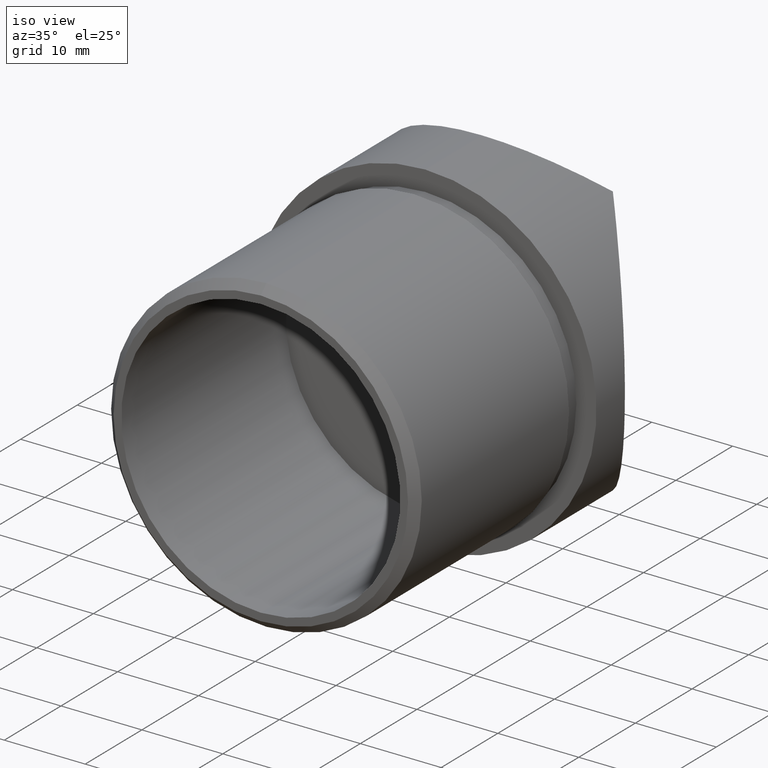
[diagram: clean part render]
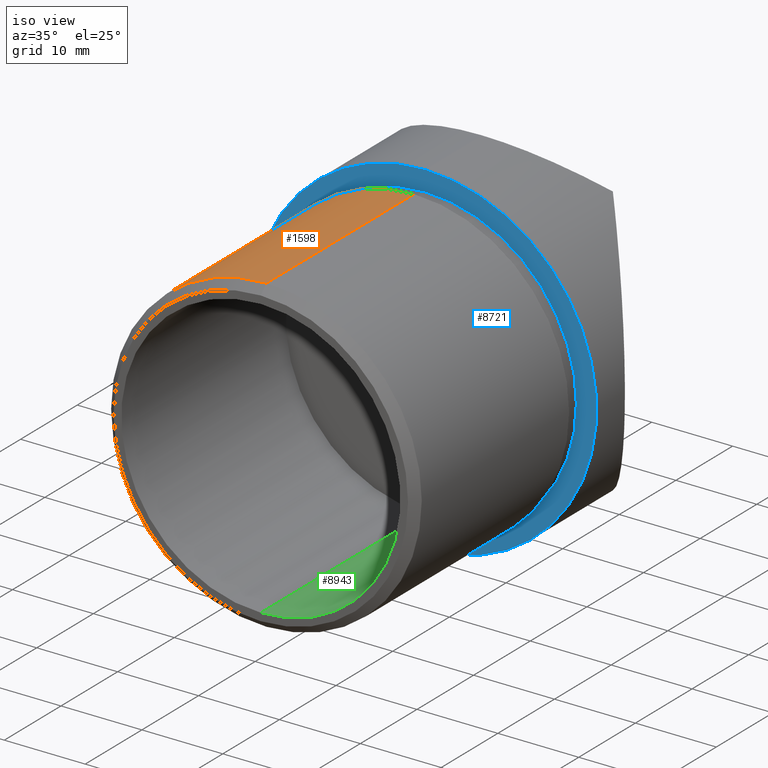
[diagram: same view with three faces highlighted in distinct colors, each labeled with its STEP entity id]
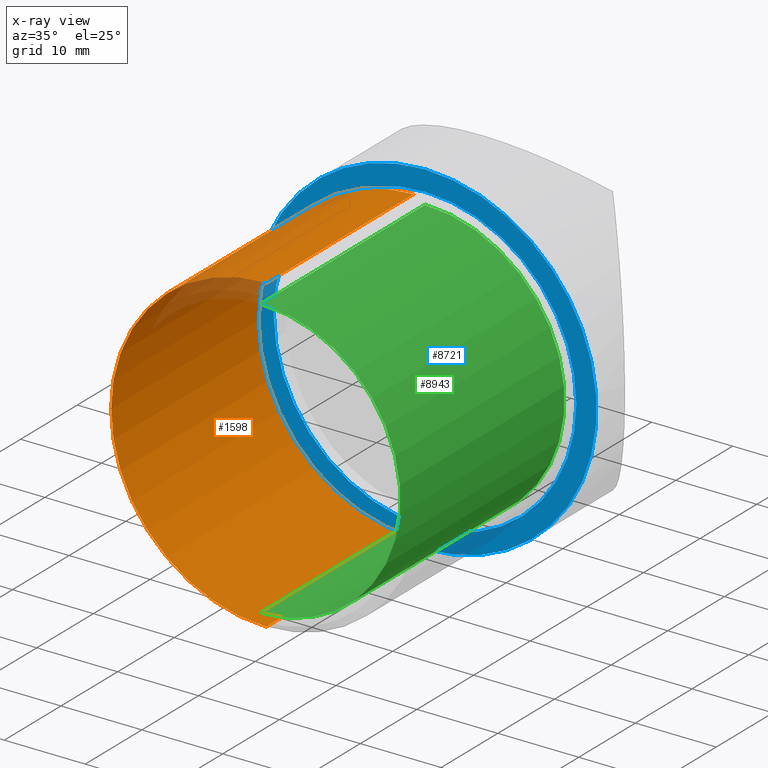
[diagram: x-ray of the same camera — body ghosted, the three highlighted faces saturated]
A machine part, iso view with three faces highlighted in distinct colors.
The next image is the same camera in x-ray (body ghosted, the three faces saturated) — at least one of them is partly hidden behind the body in this view.
Their STEP definitions:

[orange] entity #1598 — the highlighted cylindrical surface (partial cylindrical patch) has radius 19.2 mm, axis along (-0, 1, 0).
#253 = CARTESIAN_POINT ( 'NONE',  ( 2.351321854362917700E-015, -2.000000000000000000, -19.19999999999999900 ) ) ;
#622 = ORIENTED_EDGE ( 'NONE', *, *, #5392, .T. ) ;
#746 = ORIENTED_EDGE ( 'NONE', *, *, #7480, .F. ) ;
#944 = CARTESIAN_POINT ( 'NONE',  ( 0.0000000000000000000, -28.99999999999999600, 19.19999999999999900 ) ) ;
#1306 = ORIENTED_EDGE ( 'NONE', *, *, #5520, .T. ) ;
#1598 = ADVANCED_FACE ( 'NONE', ( #4989 ), #11540, .T. ) ;
#1887 = DIRECTION ( 'NONE',  ( -0.0000000000000000000, 1.000000000000000000, 0.0000000000000000000 ) ) ;
#1960 = CARTESIAN_POINT ( 'NONE',  ( 0.0000000000000000000, -28.99999999999999600, 0.0000000000000000000 ) ) ;
#1992 = VERTEX_POINT ( 'NONE', #4130 ) ;
#2693 = CARTESIAN_POINT ( 'NONE',  ( 2.351321854362917700E-015, -28.99999999999999600, -19.19999999999999900 ) ) ;
#3059 = DIRECTION ( 'NONE',  ( 0.0000000000000000000, -1.000000000000000000, 0.0000000000000000000 ) ) ;
#4130 = CARTESIAN_POINT ( 'NONE',  ( 0.0000000000000000000, -27.99999999999997500, 19.19999999999999900 ) ) ;
#4167 = LINE ( 'NONE', #2693, #6367 ) ;
#4964 = DIRECTION ( 'NONE',  ( 0.0000000000000000000, 1.000000000000000000, 0.0000000000000000000 ) ) ;
#4970 = AXIS2_PLACEMENT_3D ( 'NONE', #8646, #3059, #9594 ) ;
#4989 = FACE_OUTER_BOUND ( 'NONE', #9388, .T. ) ;
#5392 = EDGE_CURVE ( 'NONE', #1992, #10548, #9605, .T. ) ;
#5520 = EDGE_CURVE ( 'NONE', #10548, #9314, #6248, .T. ) ;
#6213 = AXIS2_PLACEMENT_3D ( 'NONE', #1960, #8524, #9475 ) ;
#6248 = CIRCLE ( 'NONE', #4970, 19.19999999999999900 ) ;
#6367 = VECTOR ( 'NONE', #8281, 1000.000000000000000 ) ;
#6395 = AXIS2_PLACEMENT_3D ( 'NONE', #10546, #4964, #11476 ) ;
#6708 = CIRCLE ( 'NONE', #6395, 19.19999999999999900 ) ;
#7480 = EDGE_CURVE ( 'NONE', #11855, #9314, #4167, .T. ) ;
#8281 = DIRECTION ( 'NONE',  ( -0.0000000000000000000, 1.000000000000000000, 0.0000000000000000000 ) ) ;
#8524 = DIRECTION ( 'NONE',  ( -0.0000000000000000000, 1.000000000000000000, 0.0000000000000000000 ) ) ;
#8646 = CARTESIAN_POINT ( 'NONE',  ( 0.0000000000000000000, -2.000000000000000000, 0.0000000000000000000 ) ) ;
#9313 = VECTOR ( 'NONE', #1887, 1000.000000000000000 ) ;
#9314 = VERTEX_POINT ( 'NONE', #253 ) ;
#9326 = EDGE_CURVE ( 'NONE', #11855, #1992, #6708, .T. ) ;
#9388 = EDGE_LOOP ( 'NONE', ( #746, #11027, #622, #1306 ) ) ;
#9408 = CARTESIAN_POINT ( 'NONE',  ( 2.351321854362917700E-015, -27.99999999999997500, -19.19999999999999900 ) ) ;
#9461 = CARTESIAN_POINT ( 'NONE',  ( 0.0000000000000000000, -2.000000000000000000, 19.19999999999999900 ) ) ;
#9475 = DIRECTION ( 'NONE',  ( 0.0000000000000000000, 0.0000000000000000000, 1.000000000000000000 ) ) ;
#9594 = DIRECTION ( 'NONE',  ( 0.0000000000000000000, 0.0000000000000000000, -1.000000000000000000 ) ) ;
#9605 = LINE ( 'NONE', #944, #9313 ) ;
#10546 = CARTESIAN_POINT ( 'NONE',  ( 0.0000000000000000000, -27.99999999999997500, 0.0000000000000000000 ) ) ;
#10548 = VERTEX_POINT ( 'NONE', #9461 ) ;
#11027 = ORIENTED_EDGE ( 'NONE', *, *, #9326, .T. ) ;
#11476 = DIRECTION ( 'NONE',  ( 0.0000000000000000000, 0.0000000000000000000, -1.000000000000000000 ) ) ;
#11540 = CYLINDRICAL_SURFACE ( 'NONE', #6213, 19.19999999999999900 ) ;
#11855 = VERTEX_POINT ( 'NONE', #9408 ) ;

[blue] entity #8721 — the highlighted planar face has unit normal (0, 1, 0).
#177 = AXIS2_PLACEMENT_3D ( 'NONE', #6548, #948, #7484 ) ;
#648 = EDGE_CURVE ( 'NONE', #3957, #1891, #7191, .T. ) ;
#785 = EDGE_LOOP ( 'NONE', ( #7488, #4737 ) ) ;
#948 = DIRECTION ( 'NONE',  ( 0.0000000000000000000, 1.000000000000000000, 0.0000000000000000000 ) ) ;
#1274 = DIRECTION ( 'NONE',  ( 0.0000000000000000000, 1.000000000000000000, 0.0000000000000000000 ) ) ;
#1830 = DIRECTION ( 'NONE',  ( 0.0000000000000000000, 1.000000000000000000, 0.0000000000000000000 ) ) ;
#1891 = VERTEX_POINT ( 'NONE', #9525 ) ;
#2324 = DIRECTION ( 'NONE',  ( -0.0000000000000000000, -1.000000000000000000, -0.0000000000000000000 ) ) ;
#2767 = FACE_OUTER_BOUND ( 'NONE', #5140, .T. ) ;
#3016 = VERTEX_POINT ( 'NONE', #11431 ) ;
#3032 = CARTESIAN_POINT ( 'NONE',  ( 2.596251214192388800E-015, 0.0000000000000000000, 21.19999999999999900 ) ) ;
#3149 = EDGE_CURVE ( 'NONE', #3016, #3388, #7660, .T. ) ;
#3388 = VERTEX_POINT ( 'NONE', #6144 ) ;
#3402 = ORIENTED_EDGE ( 'NONE', *, *, #4643, .F. ) ;
#3957 = VERTEX_POINT ( 'NONE', #3032 ) ;
#4327 = CARTESIAN_POINT ( 'NONE',  ( 0.0000000000000000000, 0.0000000000000000000, 0.0000000000000000000 ) ) ;
#4446 = CIRCLE ( 'NONE', #177, 21.19999999999999900 ) ;
#4512 = AXIS2_PLACEMENT_3D ( 'NONE', #7913, #2324, #8863 ) ;
#4643 = EDGE_CURVE ( 'NONE', #1891, #3957, #4446, .T. ) ;
#4737 = ORIENTED_EDGE ( 'NONE', *, *, #3149, .F. ) ;
#5140 = EDGE_LOOP ( 'NONE', ( #3402, #8629 ) ) ;
#5270 = FACE_BOUND ( 'NONE', #785, .T. ) ;
#5273 = DIRECTION ( 'NONE',  ( 0.0000000000000000000, 0.0000000000000000000, 1.000000000000000000 ) ) ;
#5930 = DIRECTION ( 'NONE',  ( 0.0000000000000000000, 0.0000000000000000000, 1.000000000000000000 ) ) ;
#6144 = CARTESIAN_POINT ( 'NONE',  ( 0.0000000000000000000, 0.0000000000000000000, 18.69999999999999900 ) ) ;
#6413 = CARTESIAN_POINT ( 'NONE',  ( 0.0000000000000000000, 0.0000000000000000000, 0.0000000000000000000 ) ) ;
#6548 = CARTESIAN_POINT ( 'NONE',  ( 0.0000000000000000000, 0.0000000000000000000, 0.0000000000000000000 ) ) ;
#6616 = AXIS2_PLACEMENT_3D ( 'NONE', #6413, #1830, #8351 ) ;
#6683 = AXIS2_PLACEMENT_3D ( 'NONE', #8700, #1274, #5930 ) ;
#7191 = CIRCLE ( 'NONE', #6683, 21.19999999999999900 ) ;
#7425 = PLANE ( 'NONE',  #6616 ) ;
#7484 = DIRECTION ( 'NONE',  ( 0.0000000000000000000, 0.0000000000000000000, 1.000000000000000000 ) ) ;
#7488 = ORIENTED_EDGE ( 'NONE', *, *, #11287, .F. ) ;
#7660 = CIRCLE ( 'NONE', #4512, 18.69999999999999900 ) ;
#7913 = CARTESIAN_POINT ( 'NONE',  ( 0.0000000000000000000, 0.0000000000000000000, 0.0000000000000000000 ) ) ;
#8351 = DIRECTION ( 'NONE',  ( 0.0000000000000000000, -0.0000000000000000000, 1.000000000000000000 ) ) ;
#8629 = ORIENTED_EDGE ( 'NONE', *, *, #648, .F. ) ;
#8700 = CARTESIAN_POINT ( 'NONE',  ( 0.0000000000000000000, 0.0000000000000000000, 0.0000000000000000000 ) ) ;
#8721 = ADVANCED_FACE ( 'NONE', ( #5270, #2767 ), #7425, .F. ) ;
#8863 = DIRECTION ( 'NONE',  ( 0.0000000000000000000, 0.0000000000000000000, 1.000000000000000000 ) ) ;
#8876 = CIRCLE ( 'NONE', #10321, 18.69999999999999900 ) ;
#9525 = CARTESIAN_POINT ( 'NONE',  ( 0.0000000000000000000, 0.0000000000000000000, -21.19999999999999900 ) ) ;
#10321 = AXIS2_PLACEMENT_3D ( 'NONE', #4327, #10865, #5273 ) ;
#10865 = DIRECTION ( 'NONE',  ( -0.0000000000000000000, -1.000000000000000000, -0.0000000000000000000 ) ) ;
#11287 = EDGE_CURVE ( 'NONE', #3388, #3016, #8876, .T. ) ;
#11431 = CARTESIAN_POINT ( 'NONE',  ( 2.290089514405550500E-015, 0.0000000000000000000, -18.69999999999999900 ) ) ;

[green] entity #8943 — the highlighted cylindrical surface (partial cylindrical patch) has radius 17.25 mm, axis along (-0, 1, -0).
#119 = AXIS2_PLACEMENT_3D ( 'NONE', #2139, #266, #5862 ) ;
#266 = DIRECTION ( 'NONE',  ( -0.0000000000000000000, 1.000000000000000000, -0.0000000000000000000 ) ) ;
#415 = CARTESIAN_POINT ( 'NONE',  ( 2.112515728529183700E-015, 0.0000000000000000000, -17.24999999999999600 ) ) ;
#618 = VERTEX_POINT ( 'NONE', #4966 ) ;
#981 = VERTEX_POINT ( 'NONE', #415 ) ;
#992 = LINE ( 'NONE', #4379, #10640 ) ;
#1297 = CYLINDRICAL_SURFACE ( 'NONE', #119, 17.24999999999999600 ) ;
#1379 = AXIS2_PLACEMENT_3D ( 'NONE', #4397, #10941, #5352 ) ;
#1523 = EDGE_CURVE ( 'NONE', #981, #11002, #9368, .T. ) ;
#1625 = EDGE_CURVE ( 'NONE', #6928, #981, #1907, .T. ) ;
#1832 = AXIS2_PLACEMENT_3D ( 'NONE', #4584, #11112, #5526 ) ;
#1907 = LINE ( 'NONE', #3878, #3811 ) ;
#2139 = CARTESIAN_POINT ( 'NONE',  ( 0.0000000000000000000, -2.000000000000000000, 0.0000000000000000000 ) ) ;
#2626 = ORIENTED_EDGE ( 'NONE', *, *, #11019, .T. ) ;
#2741 = ORIENTED_EDGE ( 'NONE', *, *, #9112, .T. ) ;
#3811 = VECTOR ( 'NONE', #7628, 1000.000000000000000 ) ;
#3878 = CARTESIAN_POINT ( 'NONE',  ( 2.112515728529183700E-015, -2.000000000000000000, -17.24999999999999600 ) ) ;
#4076 = FACE_OUTER_BOUND ( 'NONE', #8798, .T. ) ;
#4379 = CARTESIAN_POINT ( 'NONE',  ( 0.0000000000000000000, -2.000000000000000000, 17.24999999999999600 ) ) ;
#4397 = CARTESIAN_POINT ( 'NONE',  ( 0.0000000000000000000, -28.99999999999999600, 0.0000000000000000000 ) ) ;
#4584 = CARTESIAN_POINT ( 'NONE',  ( 0.0000000000000000000, 0.0000000000000000000, 0.0000000000000000000 ) ) ;
#4966 = CARTESIAN_POINT ( 'NONE',  ( 0.0000000000000000000, -28.99999999999999600, 17.24999999999999300 ) ) ;
#5352 = DIRECTION ( 'NONE',  ( 0.0000000000000000000, 0.0000000000000000000, -1.000000000000000000 ) ) ;
#5414 = CIRCLE ( 'NONE', #1379, 17.24999999999999300 ) ;
#5526 = DIRECTION ( 'NONE',  ( 0.0000000000000000000, 0.0000000000000000000, -1.000000000000000000 ) ) ;
#5862 = DIRECTION ( 'NONE',  ( 0.0000000000000000000, 0.0000000000000000000, 1.000000000000000000 ) ) ;
#6928 = VERTEX_POINT ( 'NONE', #8872 ) ;
#7195 = CARTESIAN_POINT ( 'NONE',  ( 0.0000000000000000000, 0.0000000000000000000, 17.24999999999999600 ) ) ;
#7628 = DIRECTION ( 'NONE',  ( -0.0000000000000000000, 1.000000000000000000, -0.0000000000000000000 ) ) ;
#8204 = DIRECTION ( 'NONE',  ( -0.0000000000000000000, 1.000000000000000000, -0.0000000000000000000 ) ) ;
#8569 = ORIENTED_EDGE ( 'NONE', *, *, #1523, .F. ) ;
#8798 = EDGE_LOOP ( 'NONE', ( #9654, #2741, #2626, #8569 ) ) ;
#8872 = CARTESIAN_POINT ( 'NONE',  ( 2.112515728529183700E-015, -28.99999999999999600, -17.24999999999999300 ) ) ;
#8943 = ADVANCED_FACE ( 'NONE', ( #4076 ), #1297, .F. ) ;
#9112 = EDGE_CURVE ( 'NONE', #6928, #618, #5414, .T. ) ;
#9368 = CIRCLE ( 'NONE', #1832, 17.24999999999999600 ) ;
#9654 = ORIENTED_EDGE ( 'NONE', *, *, #1625, .F. ) ;
#10640 = VECTOR ( 'NONE', #8204, 1000.000000000000000 ) ;
#10941 = DIRECTION ( 'NONE',  ( 0.0000000000000000000, -1.000000000000000000, 0.0000000000000000000 ) ) ;
#11002 = VERTEX_POINT ( 'NONE', #7195 ) ;
#11019 = EDGE_CURVE ( 'NONE', #618, #11002, #992, .T. ) ;
#11112 = DIRECTION ( 'NONE',  ( 0.0000000000000000000, -1.000000000000000000, 0.0000000000000000000 ) ) ;